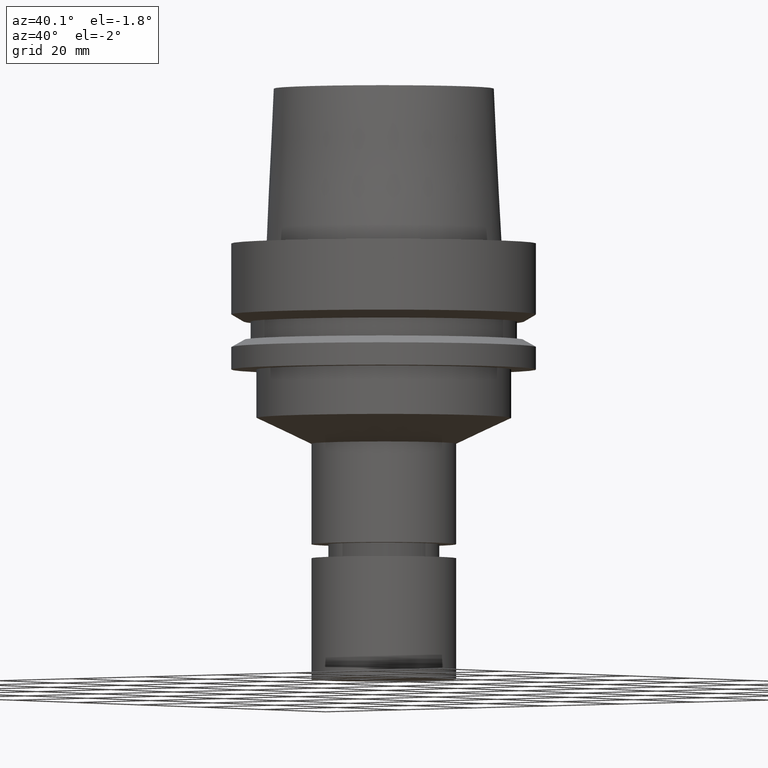
[diagram: clean part render]
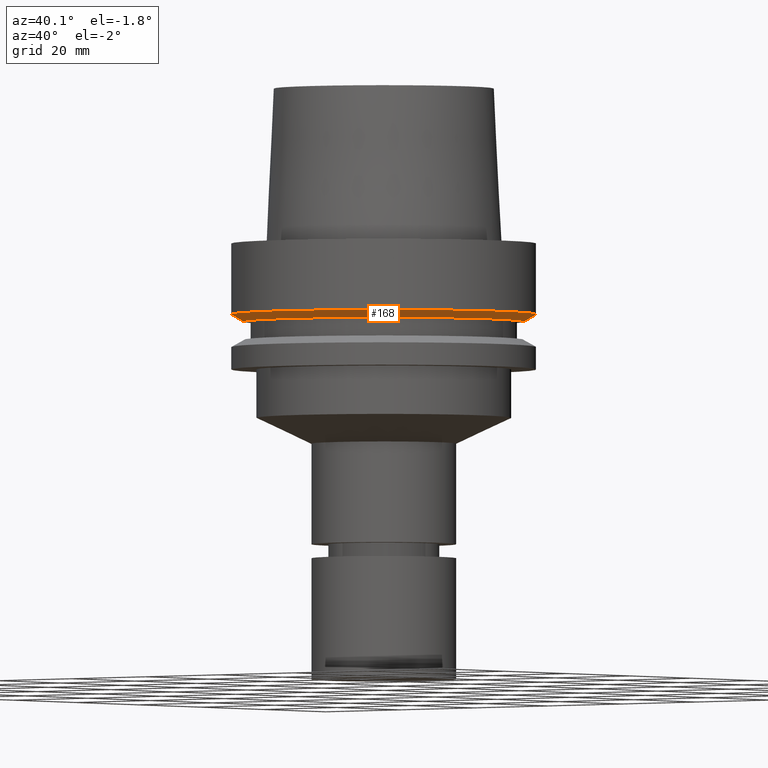
[diagram: same view with one face highlighted and labeled with its STEP entity id]
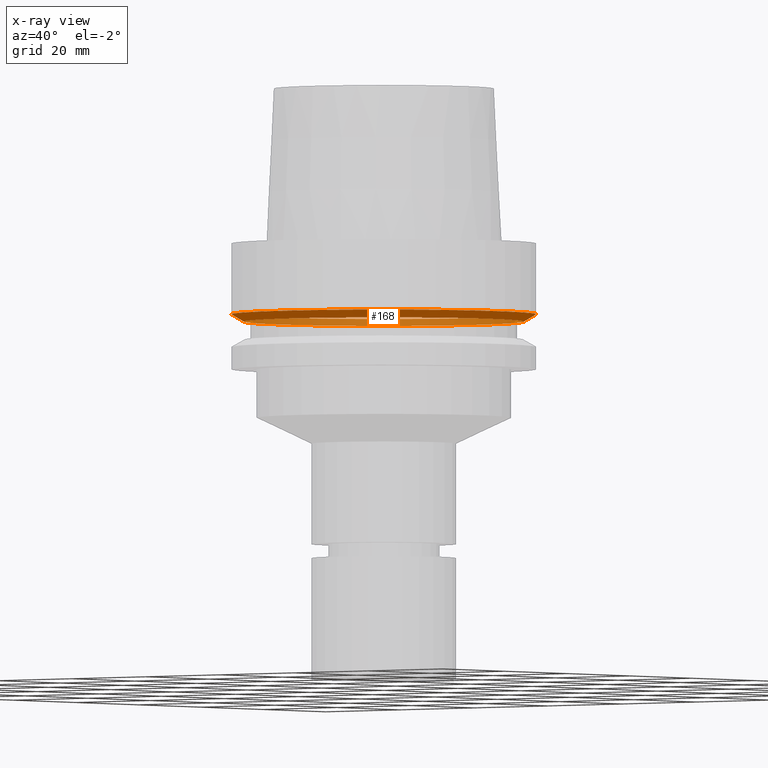
[diagram: x-ray of the same camera — body ghosted, the highlighted face saturated]
A machine part, auxiliary view. The second image highlights one B-rep face of the part: STEP entity #168.
The next image is the same camera in x-ray: the body ghosted, the highlighted face saturated — about 42% of this face is hidden behind the body in this view.
In plain terms, the highlighted conical surface has half-angle 60 deg.
Its self-contained STEP definition (entity closure, byte-faithful):
#148=EDGE_CURVE('Unnamed[1]',#320,#320,#321,.T.);
#168=ADVANCED_FACE('Unnamed[1]',(#351,#352),#353,.T.);
#173=EDGE_CURVE('Unnamed[1]',#360,#360,#361,.T.);
#320=VERTEX_POINT('',#537);
#321=CIRCLE('',#538,31.5);
#351=FACE_BOUND('',#576,.T.);
#352=FACE_BOUND('',#577,.T.);
#353=CONICAL_SURFACE('',#578,30.1987976320959,1.04719755119657);
#360=VERTEX_POINT('',#587);
#361=CIRCLE('',#588,28.8975952641919);
#537=CARTESIAN_POINT('',(8.95369947681261E-016,31.5,-14.6225009252407));
#538=AXIS2_PLACEMENT_3D('',#744,#745,#746);
#576=EDGE_LOOP('',(#778));
#577=EDGE_LOOP('',(#779));
#578=AXIS2_PLACEMENT_3D('',#780,#781,#782);
#587=CARTESIAN_POINT('',(9.87371481812551E-016,28.8975952641919,-16.125));
#588=AXIS2_PLACEMENT_3D('',#789,#790,#791);
#744=CARTESIAN_POINT('',(8.95369947681262E-016,1.79073989536252E-015,-14.6225009252407));
#745=DIRECTION('',(-6.12323399573677E-017,-1.22464679914735E-016,1.0));
#746=DIRECTION('',(-1.23259516440783E-032,1.0,1.22464679914735E-016));
#778=ORIENTED_EDGE('',*,*,#148,.F.);
#779=ORIENTED_EDGE('',*,*,#173,.T.);
#780=CARTESIAN_POINT('',(9.41370714746907E-016,1.88274142949381E-015,-15.3737504626203));
#781=DIRECTION('',(-6.12323399573677E-017,-1.22464679914735E-016,1.0));
#782=DIRECTION('',(-1.23259516440783E-032,1.0,1.22464679914735E-016));
#789=CARTESIAN_POINT('',(9.87371481812552E-016,1.9747429636251E-015,-16.125));
#790=DIRECTION('',(-6.12323399573677E-017,-1.22464679914735E-016,1.0));
#791=DIRECTION('',(-1.23259516440783E-032,1.0,1.22464679914735E-016));